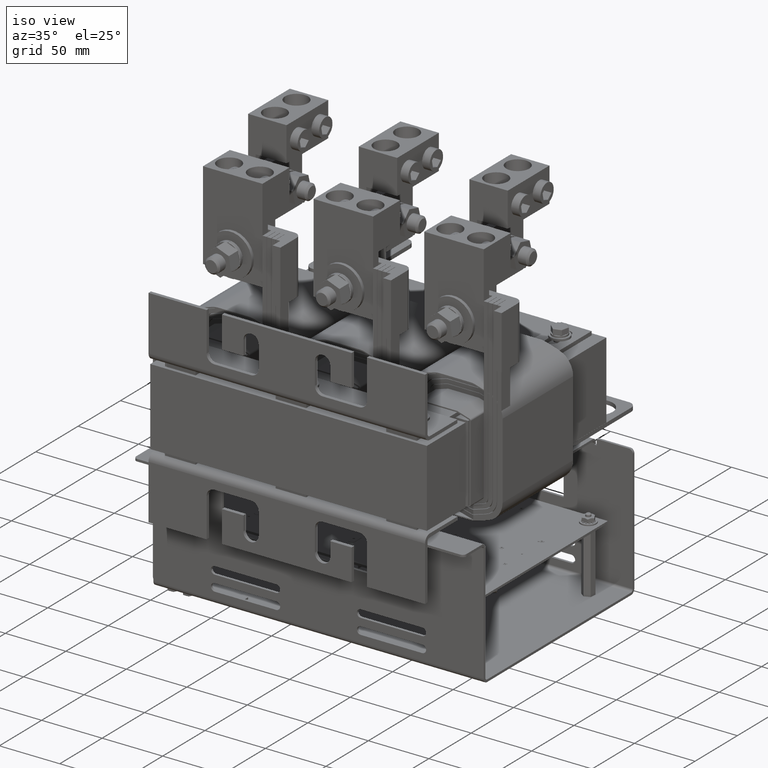
[diagram: clean part render]
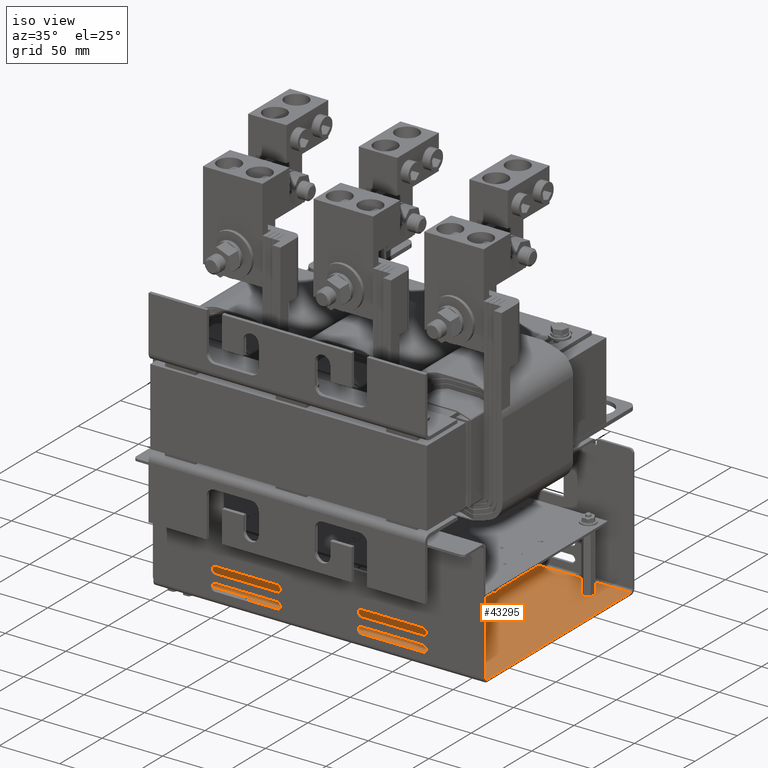
[diagram: same view with one face highlighted and labeled with its STEP entity id]
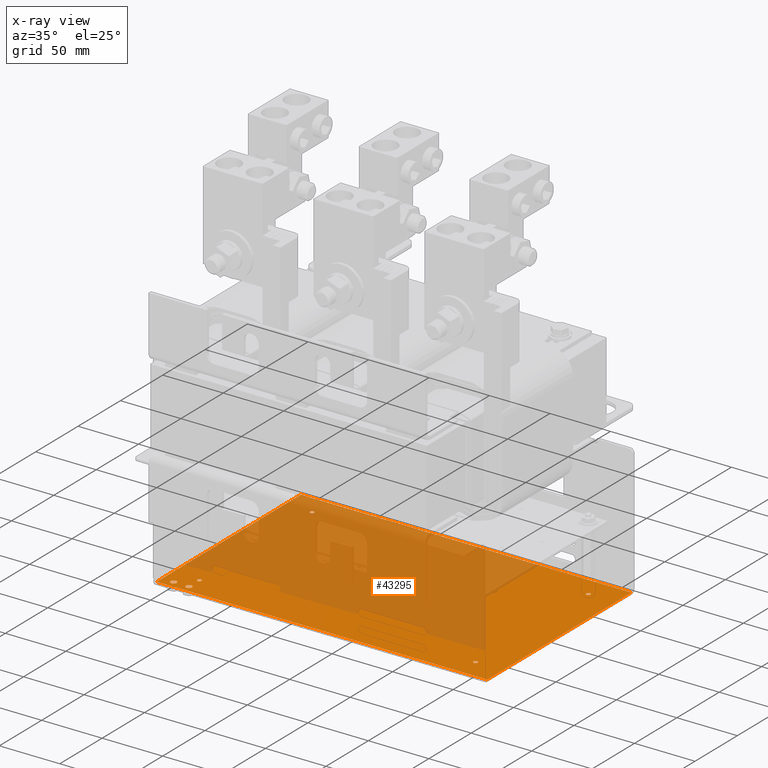
[diagram: x-ray of the same camera — body ghosted, the highlighted face saturated]
A machine part, iso view. The second image highlights one B-rep face of the part: STEP entity #43295.
The next image is the same camera in x-ray: the body ghosted, the highlighted face saturated — about 59% of this face is hidden behind the body in this view.
In plain terms, the highlighted planar face has unit normal (-0, 0, 1).
Its self-contained STEP definition (entity closure, byte-faithful):
#1931=FACE_BOUND('',#7691,.T.);
#1932=FACE_BOUND('',#7692,.T.);
#1933=FACE_BOUND('',#7693,.T.);
#1934=FACE_BOUND('',#7694,.T.);
#1935=FACE_BOUND('',#7695,.T.);
#1936=FACE_BOUND('',#7696,.T.);
#3114=PLANE('',#47585);
#5216=FACE_OUTER_BOUND('',#7690,.T.);
#7690=EDGE_LOOP('',(#38195,#38196,#38197,#38198));
#7691=EDGE_LOOP('',(#38199));
#7692=EDGE_LOOP('',(#38200));
#7693=EDGE_LOOP('',(#38201));
#7694=EDGE_LOOP('',(#38202));
#7695=EDGE_LOOP('',(#38203));
#7696=EDGE_LOOP('',(#38204));
#11727=LINE('',#73501,#15846);
#11733=LINE('',#73519,#15852);
#11736=LINE('',#73525,#15855);
#11737=LINE('',#73526,#15856);
#15846=VECTOR('',#57866,0.393700787401575);
#15852=VECTOR('',#57890,0.393700787401575);
#15855=VECTOR('',#57895,0.393700787401575);
#15856=VECTOR('',#57896,0.393700787401575);
#17701=CIRCLE('',#47497,0.098);
#17704=CIRCLE('',#47501,0.098);
#17707=CIRCLE('',#47505,0.068);
#17710=CIRCLE('',#47509,0.068);
#17713=CIRCLE('',#47513,0.068);
#17716=CIRCLE('',#47517,0.068);
#21403=VERTEX_POINT('',#73329);
#21406=VERTEX_POINT('',#73337);
#21409=VERTEX_POINT('',#73345);
#21412=VERTEX_POINT('',#73353);
#21415=VERTEX_POINT('',#73361);
#21418=VERTEX_POINT('',#73369);
#21440=VERTEX_POINT('',#73498);
#21441=VERTEX_POINT('',#73500);
#21444=VERTEX_POINT('',#73518);
#21446=VERTEX_POINT('',#73524);
#27060=EDGE_CURVE('',#21403,#21403,#17701,.T.);
#27064=EDGE_CURVE('',#21406,#21406,#17704,.T.);
#27068=EDGE_CURVE('',#21409,#21409,#17707,.T.);
#27072=EDGE_CURVE('',#21412,#21412,#17710,.T.);
#27076=EDGE_CURVE('',#21415,#21415,#17713,.T.);
#27080=EDGE_CURVE('',#21418,#21418,#17716,.T.);
#27146=EDGE_CURVE('',#21441,#21440,#11727,.T.);
#27155=EDGE_CURVE('',#21441,#21444,#11733,.T.);
#27158=EDGE_CURVE('',#21446,#21440,#11736,.T.);
#27159=EDGE_CURVE('',#21446,#21444,#11737,.T.);
#38195=ORIENTED_EDGE('',*,*,#27146,.T.);
#38196=ORIENTED_EDGE('',*,*,#27158,.F.);
#38197=ORIENTED_EDGE('',*,*,#27159,.T.);
#38198=ORIENTED_EDGE('',*,*,#27155,.F.);
#38199=ORIENTED_EDGE('',*,*,#27060,.T.);
#38200=ORIENTED_EDGE('',*,*,#27064,.T.);
#38201=ORIENTED_EDGE('',*,*,#27068,.T.);
#38202=ORIENTED_EDGE('',*,*,#27072,.T.);
#38203=ORIENTED_EDGE('',*,*,#27076,.T.);
#38204=ORIENTED_EDGE('',*,*,#27080,.T.);
#43295=ADVANCED_FACE('',(#5216,#1931,#1932,#1933,#1934,#1935,#1936),#3114,
 .T.);
#47497=AXIS2_PLACEMENT_3D('',#73331,#57655,#57656);
#47501=AXIS2_PLACEMENT_3D('',#73339,#57664,#57665);
#47505=AXIS2_PLACEMENT_3D('',#73347,#57673,#57674);
#47509=AXIS2_PLACEMENT_3D('',#73355,#57682,#57683);
#47513=AXIS2_PLACEMENT_3D('',#73363,#57691,#57692);
#47517=AXIS2_PLACEMENT_3D('',#73371,#57700,#57701);
#47585=AXIS2_PLACEMENT_3D('',#73523,#57893,#57894);
#57655=DIRECTION('center_axis',(0.,0.,-1.));
#57656=DIRECTION('ref_axis',(-1.,0.,0.));
#57664=DIRECTION('center_axis',(0.,0.,-1.));
#57665=DIRECTION('ref_axis',(-1.,0.,0.));
#57673=DIRECTION('center_axis',(0.,0.,-1.));
#57674=DIRECTION('ref_axis',(-1.,0.,0.));
#57682=DIRECTION('center_axis',(0.,0.,-1.));
#57683=DIRECTION('ref_axis',(-1.,0.,0.));
#57691=DIRECTION('center_axis',(0.,0.,-1.));
#57692=DIRECTION('ref_axis',(-1.,0.,0.));
#57700=DIRECTION('center_axis',(0.,0.,-1.));
#57701=DIRECTION('ref_axis',(-1.,0.,0.));
#57866=DIRECTION('',(1.,0.,0.));
#57890=DIRECTION('',(-3.99630335073172E-16,1.,0.));
#57893=DIRECTION('center_axis',(0.,0.,1.));
#57894=DIRECTION('ref_axis',(1.,0.,0.));
#57895=DIRECTION('',(3.99630335073172E-16,-1.,0.));
#57896=DIRECTION('',(-1.,-2.60224404233694E-16,0.));
#73329=CARTESIAN_POINT('',(0.978,0.399399999999999,0.0746999999999994));
#73331=CARTESIAN_POINT('Origin',(0.88,0.399399999999999,0.0746999999999994));
#73337=CARTESIAN_POINT('',(0.478000000000003,0.399399999999999,0.0746999999999994));
#73339=CARTESIAN_POINT('Origin',(0.380000000000003,0.399399999999999,0.0746999999999994));
#73345=CARTESIAN_POINT('',(0.948139046937965,6.1194,0.0746999999999994));
#73347=CARTESIAN_POINT('Origin',(0.880139046937965,6.1194,0.0746999999999994));
#73353=CARTESIAN_POINT('',(9.93807048748434,6.11939999952591,0.0746999999999994));
#73355=CARTESIAN_POINT('Origin',(9.87007048748434,6.11939999952591,0.0746999999999994));
#73361=CARTESIAN_POINT('',(9.93807048748434,0.8794,0.0746999999999994));
#73363=CARTESIAN_POINT('Origin',(9.87007048748434,0.8794,0.0746999999999994));
#73369=CARTESIAN_POINT('',(0.948070487484342,0.8794,0.0746999999999994));
#73371=CARTESIAN_POINT('Origin',(0.880070487484342,0.8794,0.0746999999999994));
#73498=CARTESIAN_POINT('',(10.75,0.1494,0.0747));
#73500=CARTESIAN_POINT('',(0.,0.1494,0.0747));
#73501=CARTESIAN_POINT('',(2.6875,0.1494,0.0747));
#73518=CARTESIAN_POINT('',(-2.73770757345227E-15,6.8506,0.0747));
#73519=CARTESIAN_POINT('',(-2.79741234551221E-15,7.,0.0747));
#73523=CARTESIAN_POINT('Origin',(5.375,3.5,0.0747));
#73524=CARTESIAN_POINT('',(10.75,6.8506,0.0747));
#73525=CARTESIAN_POINT('',(10.75,1.55287579767916E-31,0.0747));
#73526=CARTESIAN_POINT('',(8.0625,6.8506,0.0747));